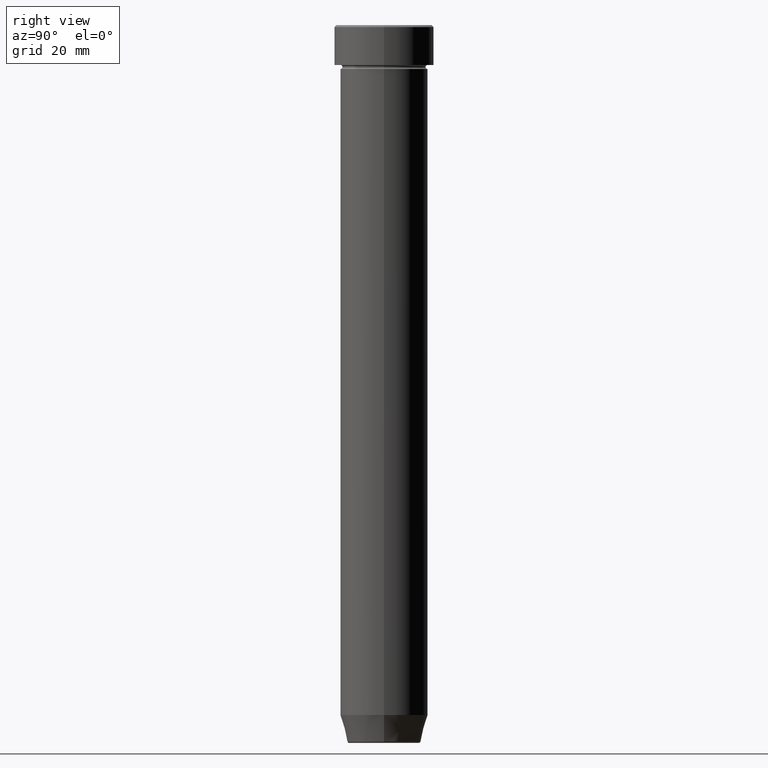
[diagram: clean part render]
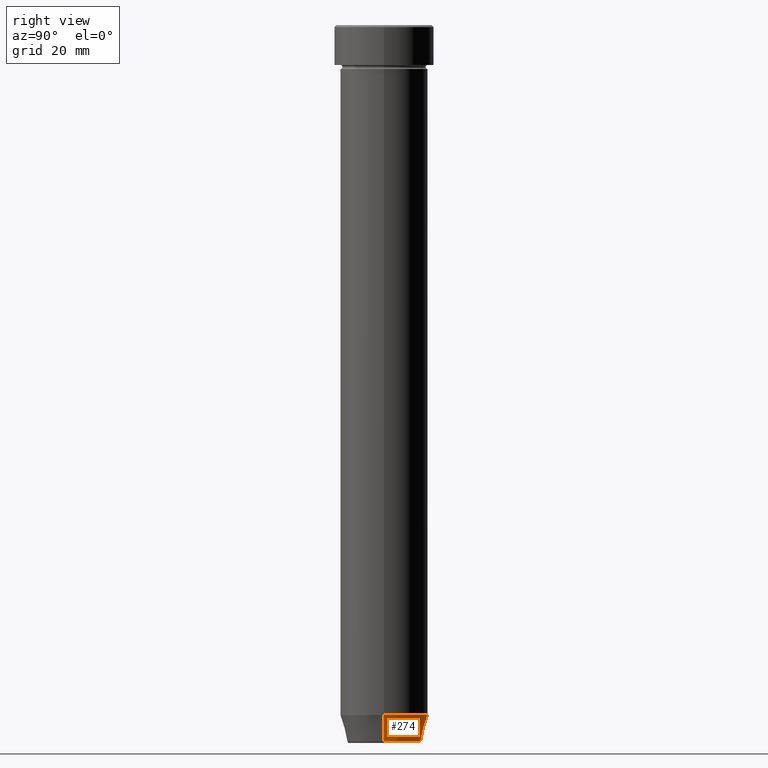
[diagram: same view with one face highlighted and labeled with its STEP entity id]
A machine part, right view. The second image highlights one B-rep face of the part: STEP entity #274.
In plain terms, the highlighted conical surface has half-angle 15 deg.
Its self-contained STEP definition (entity closure, byte-faithful):
#24 = DIRECTION ( 'NONE',  ( -0.000000000000000000, -0.000000000000000000, 1.000000000000000000 ) ) ;
#36 = CARTESIAN_POINT ( 'NONE',  ( 11.00000000000000000, 0.000000000000000000, -173.0000000000000000 ) ) ;
#50 = VECTOR ( 'NONE', #98, 1000.000000000000000 ) ;
#84 = CARTESIAN_POINT ( 'NONE',  ( 0.000000000000000000, 0.000000000000000000, -180.0000000000000000 ) ) ;
#94 = DIRECTION ( 'NONE',  ( 1.000000000000000000, 0.000000000000000000, 0.000000000000000000 ) ) ;
#98 = DIRECTION ( 'NONE',  ( -0.2588190451025213501, 3.169619151431772337E-17, 0.9659258262890680902 ) ) ;
#110 = EDGE_CURVE ( 'NONE', #121, #170, #133, .T. ) ;
#121 = VERTEX_POINT ( 'NONE', #366 ) ;
#133 = CIRCLE ( 'NONE', #560, 9.223655072137189492 ) ;
#157 = DIRECTION ( 'NONE',  ( -0.000000000000000000, -0.000000000000000000, 1.000000000000000000 ) ) ;
#170 = VERTEX_POINT ( 'NONE', #283 ) ;
#190 = ORIENTED_EDGE ( 'NONE', *, *, #110, .T. ) ;
#234 = LINE ( 'NONE', #415, #50 ) ;
#247 = LINE ( 'NONE', #513, #469 ) ;
#254 = CARTESIAN_POINT ( 'NONE',  ( 0.000000000000000000, 0.000000000000000000, -179.6294095225512422 ) ) ;
#264 = EDGE_LOOP ( 'NONE', ( #190, #414, #555, #488 ) ) ;
#265 = VERTEX_POINT ( 'NONE', #36 ) ;
#274 = ADVANCED_FACE ( 'NONE', ( #319 ), #546, .T. ) ;
#283 = CARTESIAN_POINT ( 'NONE',  ( -9.223655072137189492, 1.238341722557647202E-15, -179.6294095225512422 ) ) ;
#313 = AXIS2_PLACEMENT_3D ( 'NONE', #328, #157, #94 ) ;
#319 = FACE_OUTER_BOUND ( 'NONE', #264, .T. ) ;
#328 = CARTESIAN_POINT ( 'NONE',  ( 0.000000000000000000, 0.000000000000000000, -173.0000000000000000 ) ) ;
#360 = VERTEX_POINT ( 'NONE', #545 ) ;
#366 = CARTESIAN_POINT ( 'NONE',  ( 9.223655072137189492, 0.000000000000000000, -179.6294095225512422 ) ) ;
#374 = DIRECTION ( 'NONE',  ( 0.2588190451025213501, 0.000000000000000000, 0.9659258262890680902 ) ) ;
#385 = EDGE_CURVE ( 'NONE', #265, #360, #413, .T. ) ;
#405 = DIRECTION ( 'NONE',  ( -0.000000000000000000, -0.000000000000000000, 1.000000000000000000 ) ) ;
#413 = CIRCLE ( 'NONE', #313, 11.00000000000000000 ) ;
#414 = ORIENTED_EDGE ( 'NONE', *, *, #451, .T. ) ;
#415 = CARTESIAN_POINT ( 'NONE',  ( -9.124355652982133691, 1.117411294470662806E-15, -180.0000000000000000 ) ) ;
#418 = EDGE_CURVE ( 'NONE', #121, #265, #247, .T. ) ;
#440 = AXIS2_PLACEMENT_3D ( 'NONE', #84, #405, #496 ) ;
#451 = EDGE_CURVE ( 'NONE', #170, #360, #234, .T. ) ;
#469 = VECTOR ( 'NONE', #374, 1000.000000000000000 ) ;
#471 = DIRECTION ( 'NONE',  ( -1.000000000000000000, 0.000000000000000000, 0.000000000000000000 ) ) ;
#488 = ORIENTED_EDGE ( 'NONE', *, *, #418, .F. ) ;
#496 = DIRECTION ( 'NONE',  ( 1.000000000000000000, 0.000000000000000000, 0.000000000000000000 ) ) ;
#513 = CARTESIAN_POINT ( 'NONE',  ( 9.124355652982133691, 0.000000000000000000, -180.0000000000000000 ) ) ;
#545 = CARTESIAN_POINT ( 'NONE',  ( -11.00000000000000000, 1.347111479062088405E-15, -173.0000000000000000 ) ) ;
#546 = CONICAL_SURFACE ( 'NONE', #440, 9.124355652982133691, 0.2617993877991500740 ) ;
#555 = ORIENTED_EDGE ( 'NONE', *, *, #385, .F. ) ;
#560 = AXIS2_PLACEMENT_3D ( 'NONE', #254, #24, #471 ) ;